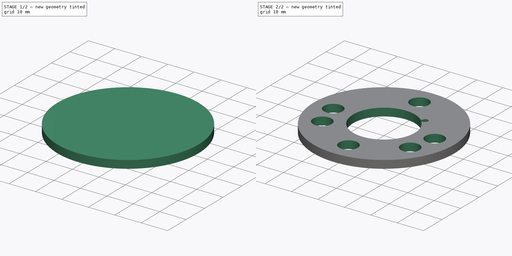
[diagram: build sequence overview — one tinted view per stage of 2, left to right]
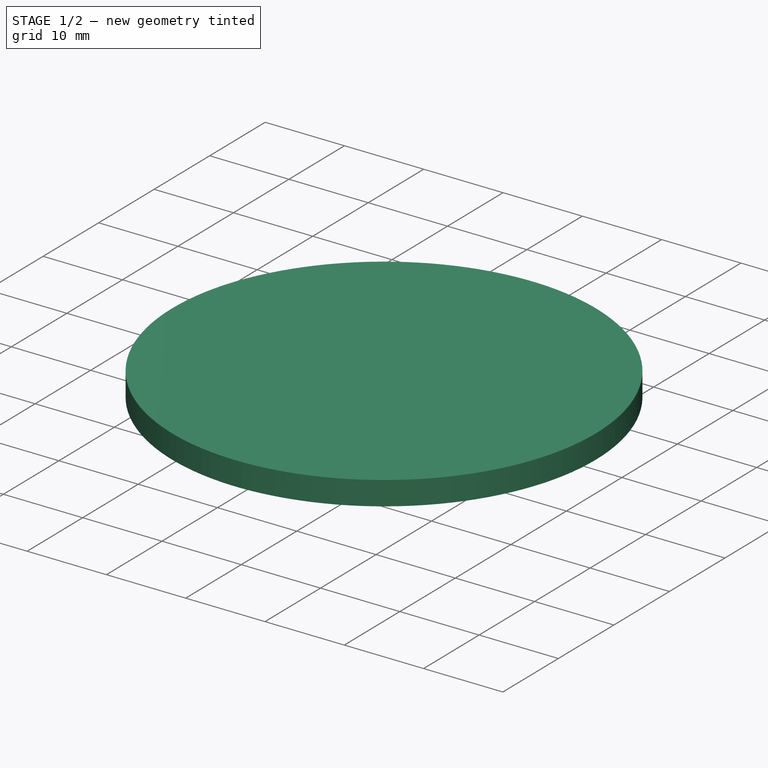
[diagram: stage 1 of 2 — iso view after this stage's code; geometry added in this stage tinted green]
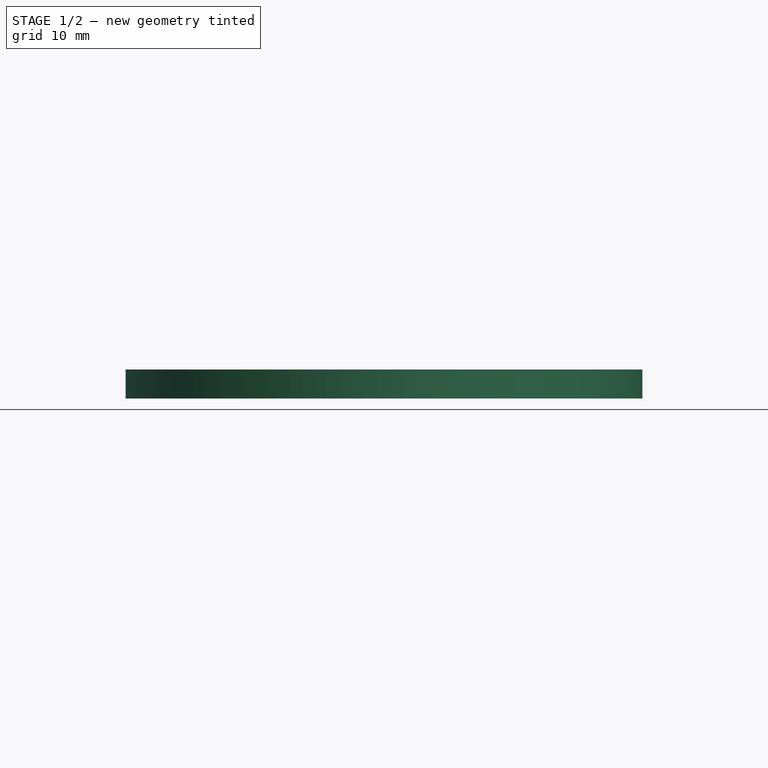
[diagram: stage 1 of 2 — front view after this stage's code; geometry added in this stage tinted green]
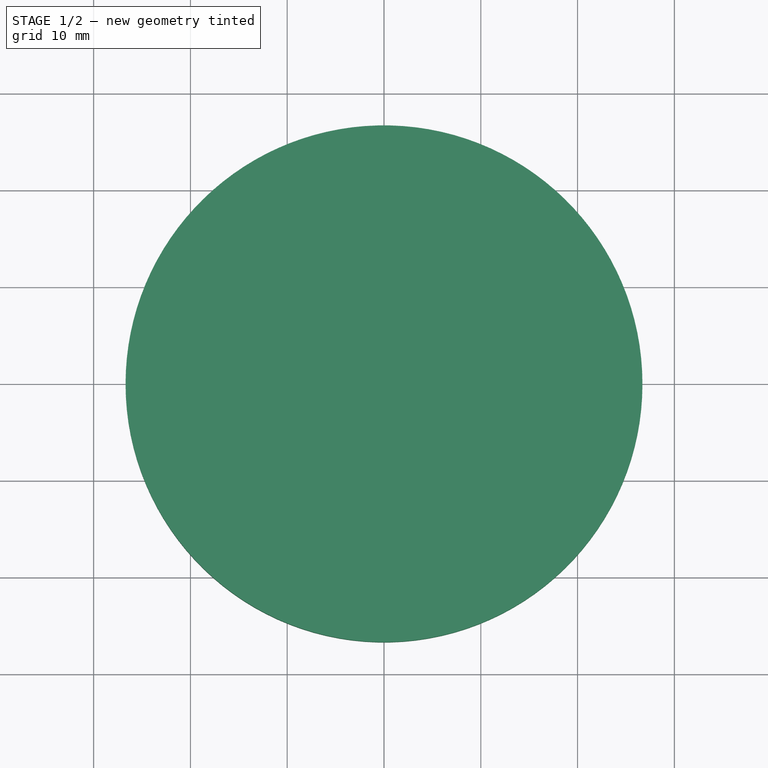
[diagram: stage 1 of 2 — top view after this stage's code; geometry added in this stage tinted green]
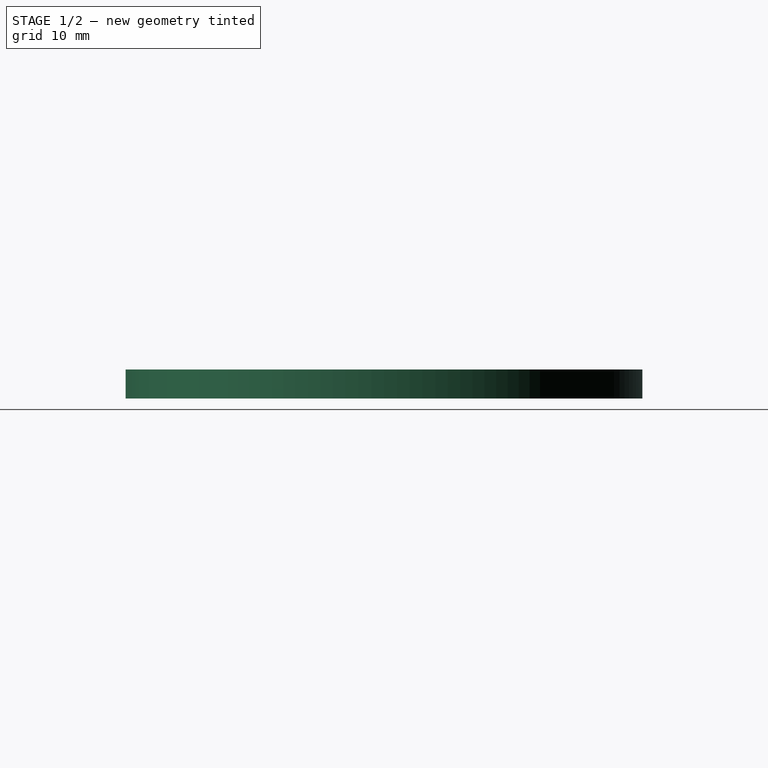
[diagram: stage 1 of 2 — right view after this stage's code; geometry added in this stage tinted green]
FCSTD DOCUMENT  (FreeCAD 0.16R6712 (Git))
Label: Antenna Mast Guy Ring
License: All rights reserved
LicenseURL: http://en.wikipedia.org/wiki/All_rights_reserved
objects: Part::Cylinder×1, Sketcher::SketchObject×1, PartDesign::Pocket×1
note: 4 computed .brp shape members not serialized (recipe doc carries the construction recipe); baked Part::Feature solids carry a one-line shape summary decoded from their .brp

FEATURE [Part::Cylinder] Cylinder
  Angle = 360
  Height = 3
  Radius = 26.7
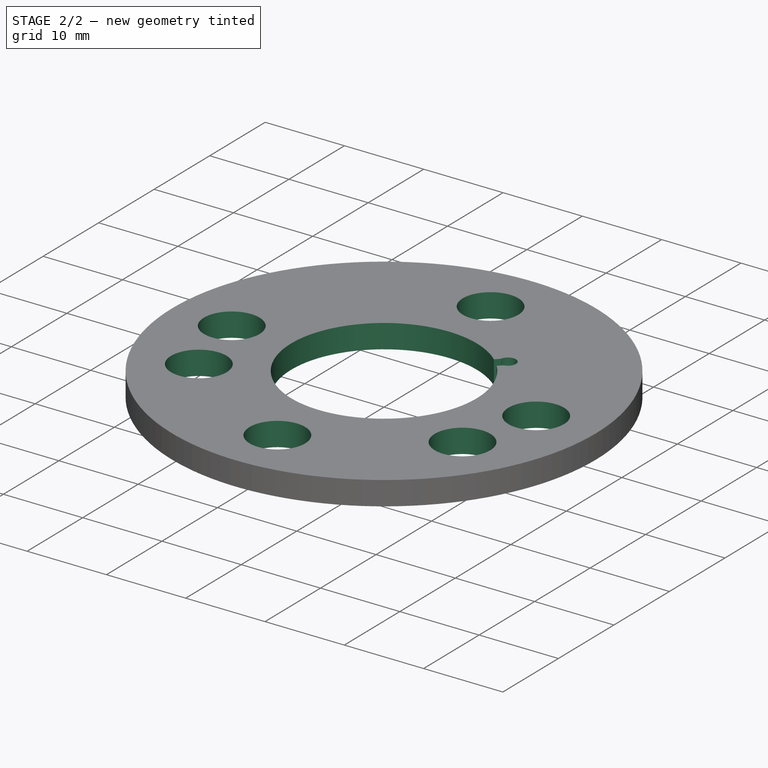
[diagram: stage 2 of 2 — iso view after this stage's code; geometry added in this stage tinted green]
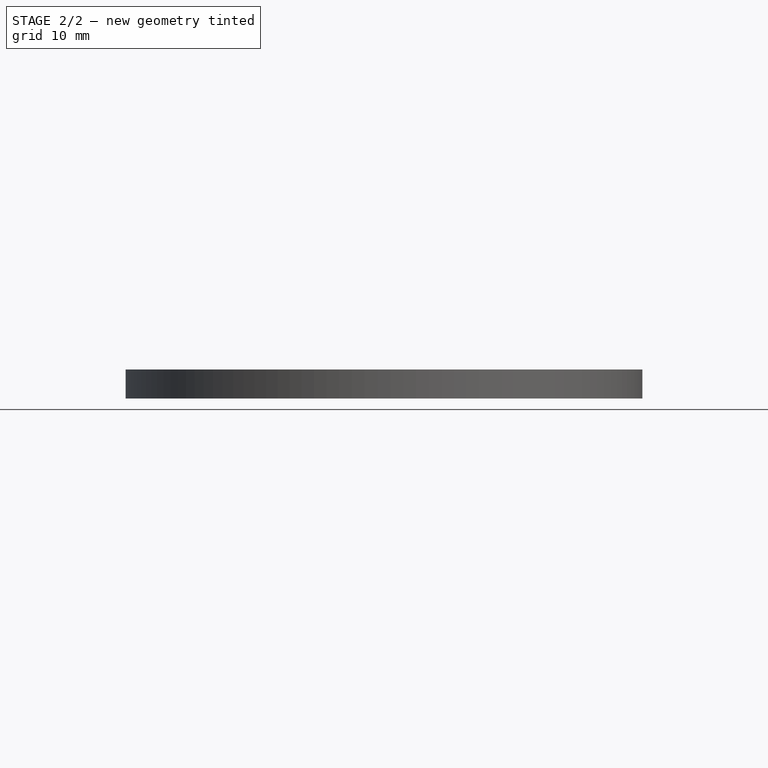
[diagram: stage 2 of 2 — front view after this stage's code; geometry added in this stage tinted green]
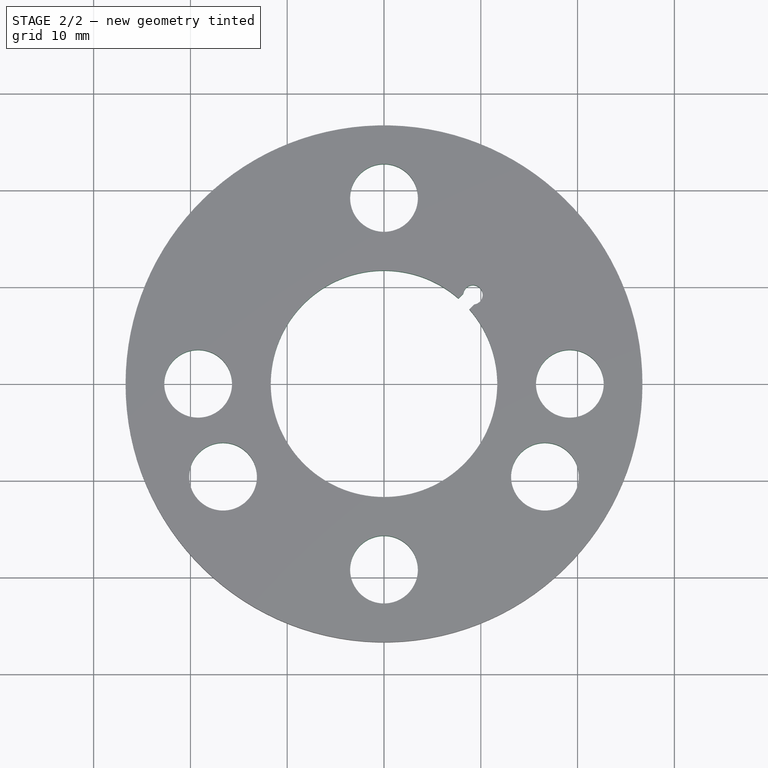
[diagram: stage 2 of 2 — top view after this stage's code; geometry added in this stage tinted green]
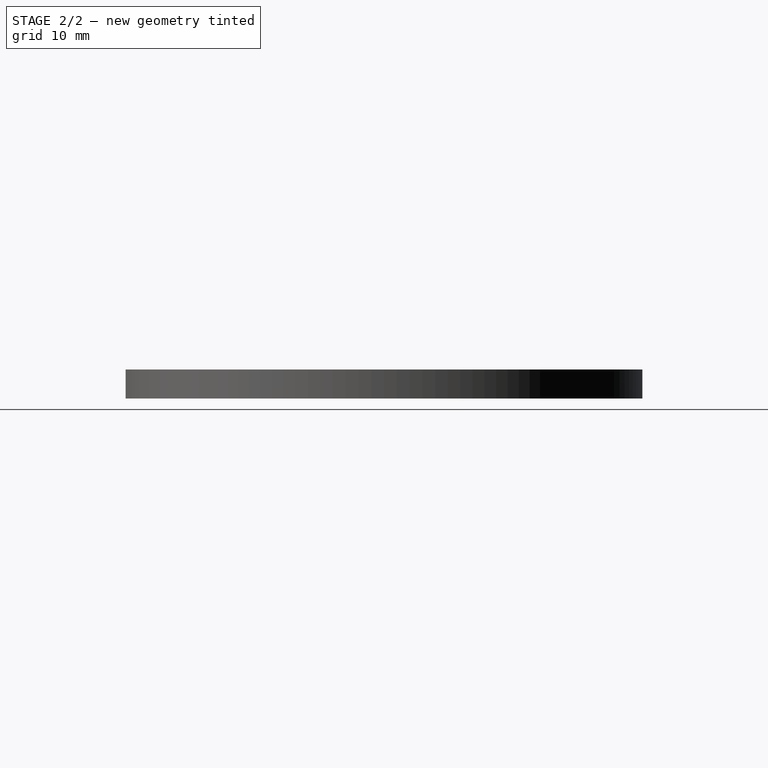
[diagram: stage 2 of 2 — right view after this stage's code; geometry added in this stage tinted green]
FEATURE [Sketcher::SketchObject] Sketch  label="Cutouts"
  Placement = pos=(0,0,3) rot=(0,0,1;0rad)
  Support = -> Cylinder [Face2]
  sketch-geometry (10):
    g0: ArcOfCircle CenterX=0 CenterY=0 CenterZ=0 NormalX=0 NormalY=0 NormalZ=1 Radius=11.7 StartAngle=0.853828 EndAngle=7.00015
    g1: Circle CenterX=0 CenterY=19.2 CenterZ=0 NormalX=0 NormalY=0 NormalZ=1 Radius=3.5
    g2: Circle CenterX=16.6277 CenterY=-9.6 CenterZ=0 NormalX=0 NormalY=0 NormalZ=1 Radius=3.5
    g3: Circle CenterX=-16.6277 CenterY=-9.6 CenterZ=0 NormalX=0 NormalY=0 NormalZ=1 Radius=3.5
    g4: ArcOfCircle CenterX=9.19239 CenterY=9.19239 CenterZ=0 NormalX=0 NormalY=0 NormalZ=1 Radius=1 StartAngle=4.85429 EndAngle=9.28288
    g5: Circle CenterX=0 CenterY=-19.2 CenterZ=0 NormalX=0 NormalY=0 NormalZ=1 Radius=3.5
    g6: Circle CenterX=-19.2 CenterY=0 CenterZ=0 NormalX=0 NormalY=0 NormalZ=1 Radius=3.5
    g7: Circle CenterX=19.2 CenterY=0 CenterZ=0 NormalX=0 NormalY=0 NormalZ=1 Radius=3.5
    g8: LineSegment StartX=7.6881 StartY=8.81947 StartZ=0 EndX=8.20244 EndY=9.33381 EndZ=0
    g9: LineSegment StartX=8.81947 StartY=7.6881 StartZ=0 EndX=9.33381 EndY=8.20244 EndZ=0
  constraints (31):
    c: Coincident(g0,g-1)
    c: Radius(g0) = 11.7
    c: PointOnObject(g1,g-2)
    c: DistanceY(g-1,g1) = 19.2
    c: Radius(g1) = 3.5
    c: Radius(g2) = 3.5
    c: Radius(g3) = 3.5
    c: DistanceY(g2) = -9.6
    c: DistanceX(g-1,g2) = 16.6277
    c: DistanceX(g3,g-1) = 16.6277
    c: DistanceY(g3,g-1) = 9.6
    c: Radius(g4) = 1
    c: PointOnObject(g5,g-2)
    c: Radius(g5) = 3.5
    c: DistanceY(g5,g-1) = 19.2
    c: PointOnObject(g6,g-1)
    c: PointOnObject(g7,g-1)
    c: Radius(g7) = 3.5
    c: DistanceX(g-1,g7) = 19.2
    c: DistanceX(g6,g-1) = 19.2
    c: Radius(g6) = 3.5
    c: DistanceY(g-1,g4) = 9.19239
    c: DistanceX(g-1,g4) = 9.19239
    c: Parallel(g9,g8)
    c: Equal(g9,g8)
    c: Angle(g8) = 0.785398
    c: Coincident(g0,g8)
    c: Coincident(g0,g9)
    c: Distance(g0,g0) = 1.6
    c: Coincident(g4,g9)
    c: Coincident(g4,g8)
FEATURE [PartDesign::Pocket] Pocket
  Length = 5
  Sketch = -> Sketch
  Type = 2
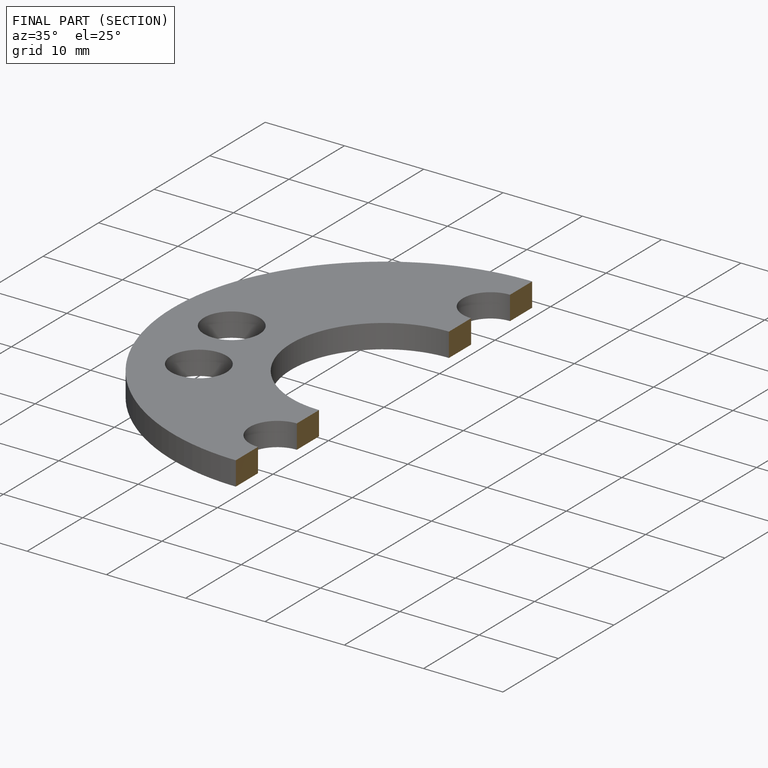
[diagram: finished part — half-section view (interior)]
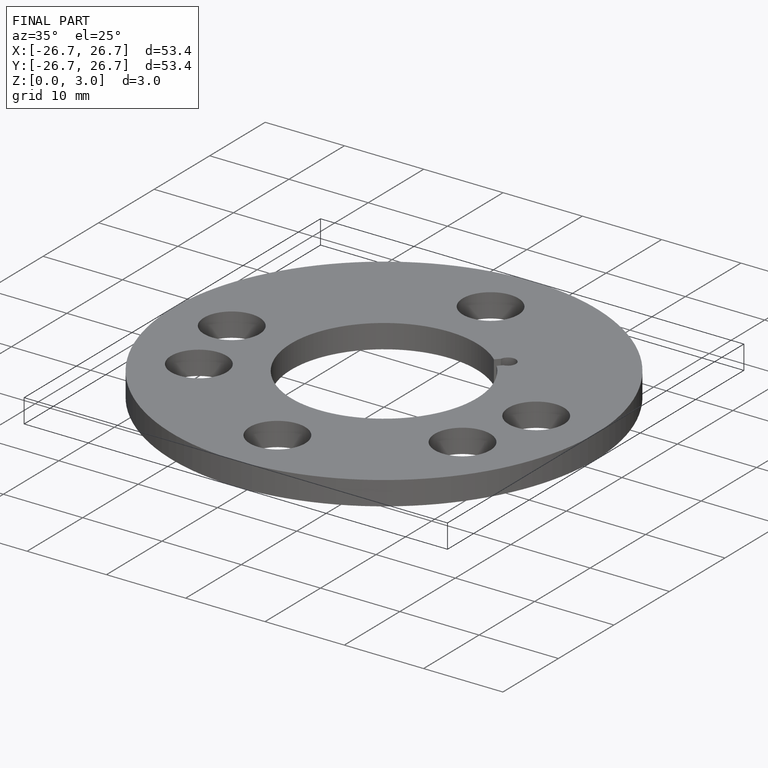
[diagram: finished part — iso view with bounding-box wireframe]
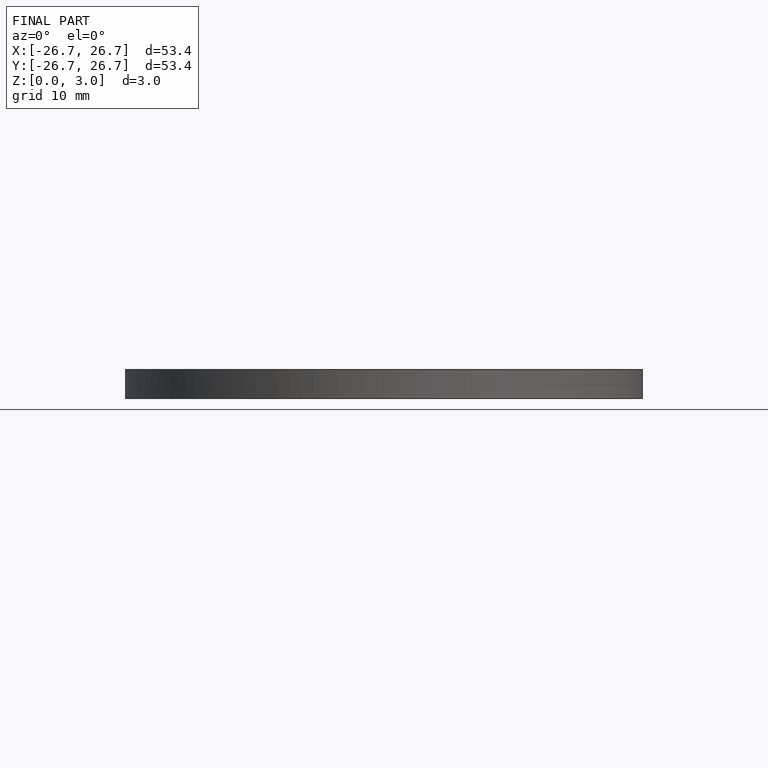
[diagram: finished part — front view with bounding-box wireframe]
